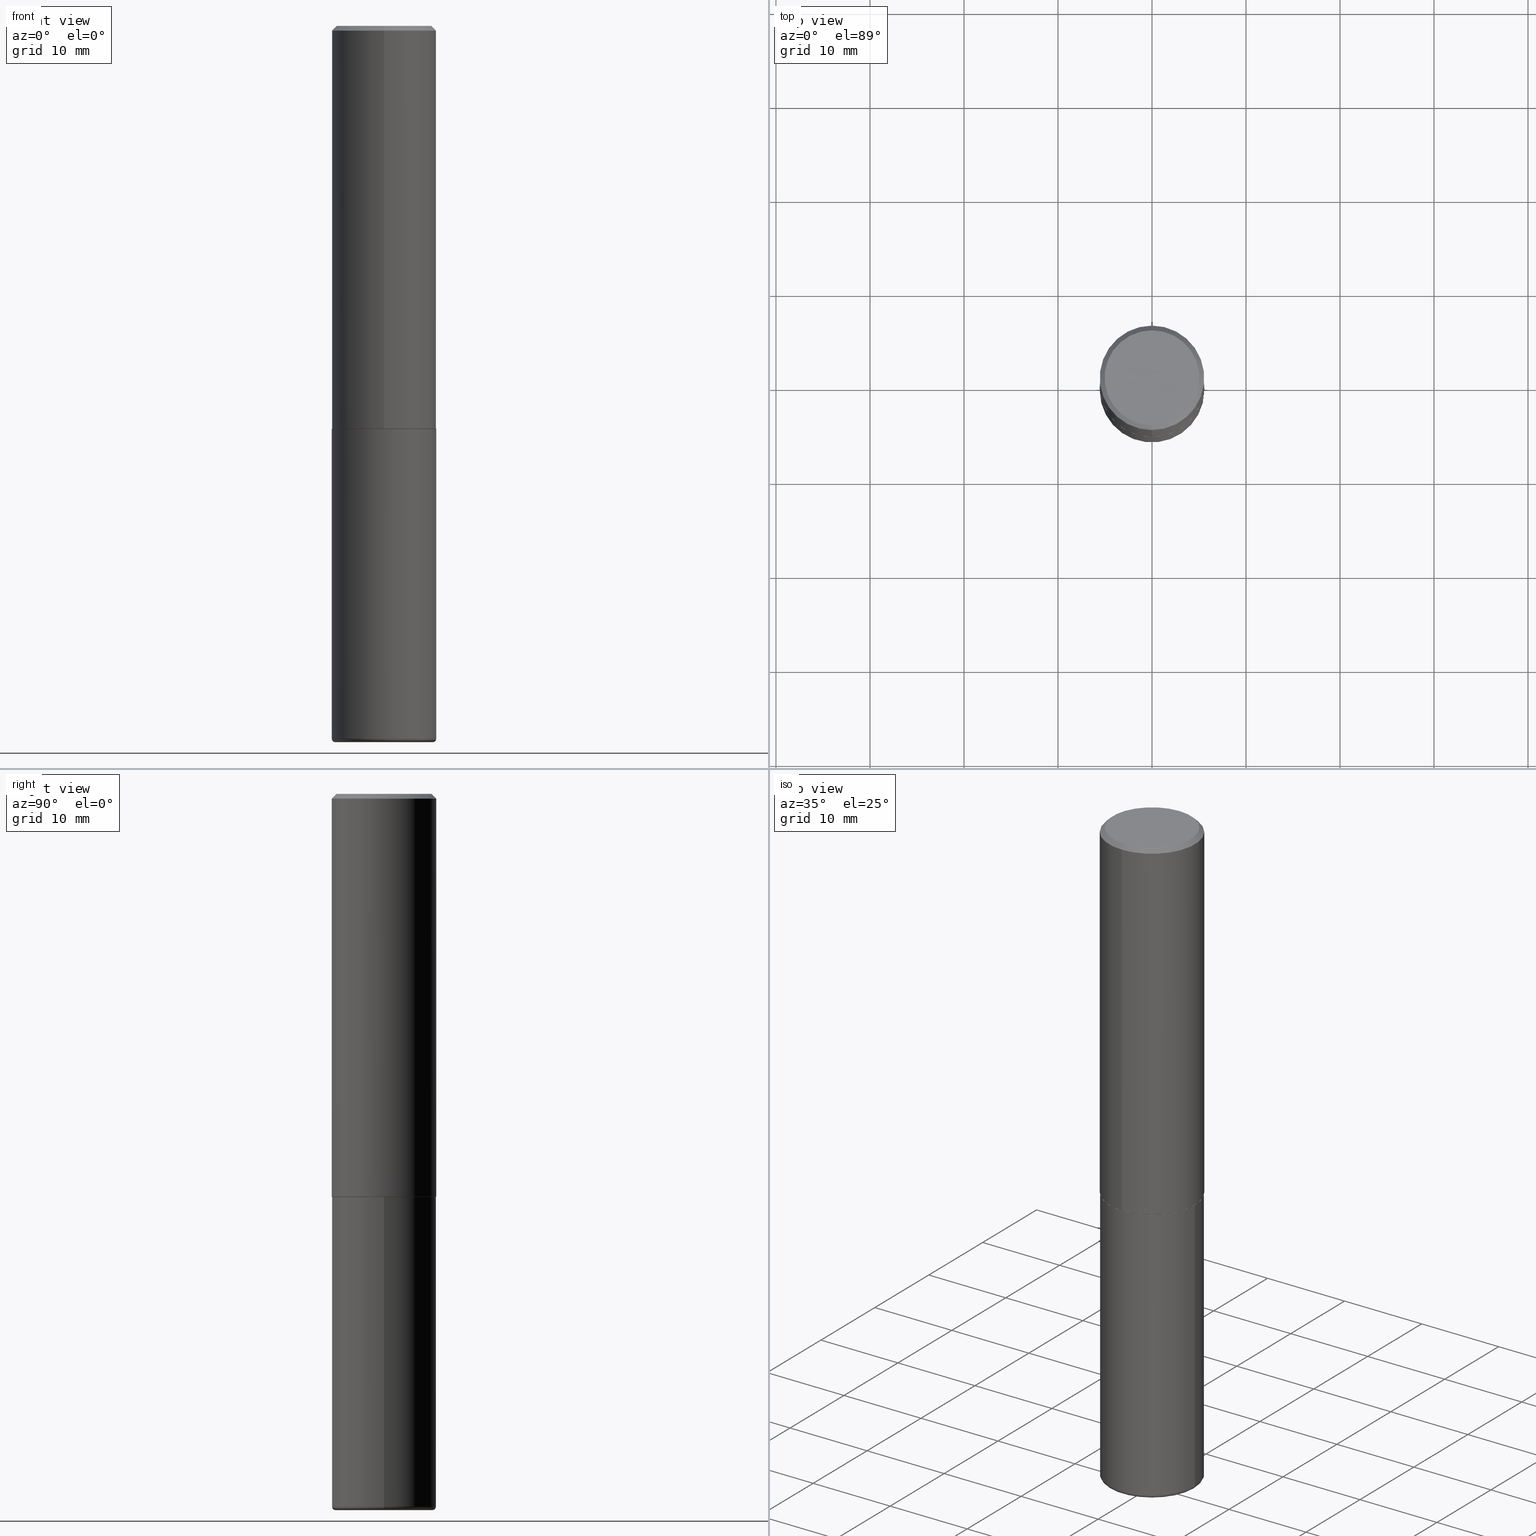
[diagram: canonical four-view strip — front | top / right | iso, engineering-drawing reading convention]
A machine part, canonical four-view strip (front | top / right | iso — engineering-drawing reading convention). The complete STEP part file that produces these views, byte-faithful:
ISO-10303-21;
HEADER;
FILE_DESCRIPTION (( 'STEP AP203' ),
    '1' );
FILE_NAME ('37500.STEP',
    '2024-03-02T02:47:31',
    ( '' ),
    ( '' ),
    'SwSTEP 2.0',
    'SolidWorks 2023',
    '' );
FILE_SCHEMA (( 'CONFIG_CONTROL_DESIGN' ));
ENDSEC;

DATA;
#1 = DIRECTION ( 'NONE',  ( -6.982962677686266711E-15, -1.000000000000000000, 3.491481338843145583E-15 ) ) ;
#2 = PLANE ( 'NONE',  #377 ) ;
#3 = CARTESIAN_POINT ( 'NONE',  ( 0.2037499999999999867, -1.189722266210801146E-14, -2.999999999999999556 ) ) ;
#4 = CIRCLE ( 'NONE', #202, 0.2187500000000000000 ) ;
#5 = LOCAL_TIME ( 21, 47, 31.00000000000000000, #380 ) ;
#6 = ORIENTED_EDGE ( 'NONE', *, *, #153, .T. ) ;
#7 = FACE_OUTER_BOUND ( 'NONE', #381, .T. ) ;
#8 = CARTESIAN_POINT ( 'NONE',  ( 4.890108441716715262E-31, -6.984150097255683598E-17, -0.02000000000000005246 ) ) ;
#9 = EDGE_CURVE ( 'NONE', #287, #157, #175, .T. ) ;
#10 = CARTESIAN_POINT ( 'NONE',  ( -1.500733937012521346E-15, -0.2187500000000000278, -0.01999999999999928571 ) ) ;
#11 = CARTESIAN_POINT ( 'NONE',  ( 1.527523085743870843E-15, 0.2187499999999998890, -0.02000000000000081574 ) ) ;
#12 = CARTESIAN_POINT ( 'NONE',  ( 4.126028997698468907E-29, -5.892876644559468745E-15, -1.687500000000000222 ) ) ;
#13 = ADVANCED_FACE ( 'NONE', ( #141 ), #2, .F. ) ;
#14 = ORIENTED_EDGE ( 'NONE', *, *, #137, .F. ) ;
#15 = PERSON_AND_ORGANIZATION ( #334, #174 ) ;
#16 = CARTESIAN_POINT ( 'NONE',  ( -1.527523085743831005E-15, -0.2187500000000061062, -1.686499999999999444 ) ) ;
#17 = ORIENTED_EDGE ( 'NONE', *, *, #230, .T. ) ;
#18 = APPLICATION_CONTEXT ( 'configuration controlled 3d designs of mechanical parts and assemblies' ) ;
#19 = PERSON_AND_ORGANIZATION_ROLE ( 'classification_officer' ) ;
#20 = LINE ( 'NONE', #208, #316 ) ;
#21 = EDGE_LOOP ( 'NONE', ( #100, #253, #127, #362 ) ) ;
#22 = AXIS2_PLACEMENT_3D ( 'NONE', #367, #173, #204 ) ;
#23 = VERTEX_POINT ( 'NONE', #64 ) ;
#24 = DATE_AND_TIME ( #386, #391 ) ;
#25 = ORIENTED_EDGE ( 'NONE', *, *, #230, .F. ) ;
#26 = CARTESIAN_POINT ( 'NONE',  ( 0.000000000000000000, 0.000000000000000000, 0.000000000000000000 ) ) ;
#27 = LOCAL_TIME ( 21, 47, 31.00000000000000000, #132 ) ;
#28 = EDGE_CURVE ( 'NONE', #216, #23, #266, .T. ) ;
#29 = CARTESIAN_POINT ( 'NONE',  ( 4.126028997698468907E-29, -5.892876644559468745E-15, -1.687500000000000222 ) ) ;
#30 = VERTEX_POINT ( 'NONE', #104 ) ;
#31 = CARTESIAN_POINT ( 'NONE',  ( 4.890108441716715262E-31, -6.984150097255683598E-17, -0.02000000000000005246 ) ) ;
#32 = CARTESIAN_POINT ( 'NONE',  ( -0.2037499999999999867, -8.947236377194901810E-15, -2.999999999999999556 ) ) ;
#33 = EDGE_CURVE ( 'NONE', #82, #346, #392, .T. ) ;
#34 = FACE_OUTER_BOUND ( 'NONE', #310, .T. ) ;
#35 = CONICAL_SURFACE ( 'NONE', #22, 0.2187499999999999445, 0.7853981633974472798 ) ;
#36 = CONICAL_SURFACE ( 'NONE', #140, 0.2177499999999999991, 0.7853981633975336552 ) ;
#37 = DIRECTION ( 'NONE',  ( -2.445054220858351343E-29, 3.492075048627833097E-15, 1.000000000000000000 ) ) ;
#38 = CC_DESIGN_PERSON_AND_ORGANIZATION_ASSIGNMENT ( #48, #110, ( #272 ) ) ;
#39 = DIRECTION ( 'NONE',  ( -2.445468806185136597E-29, 3.491481338843145583E-15, 1.000000000000000000 ) ) ;
#40 = CARTESIAN_POINT ( 'NONE',  ( 0.2187500000000000278, -1.527523085743871040E-15, 1.066663669705361025E-29 ) ) ;
#41 = EDGE_CURVE ( 'NONE', #157, #414, #361, .T. ) ;
#42 = AXIS2_PLACEMENT_3D ( 'NONE', #8, #192, #295 ) ;
#43 = AXIS2_PLACEMENT_3D ( 'NONE', #206, #347, #277 ) ;
#44 = DIRECTION ( 'NONE',  ( -2.445468806185136877E-29, 3.491481338843145188E-15, 1.000000000000000000 ) ) ;
#45 = DIRECTION ( 'NONE',  ( -4.851104656540958753E-15, -0.7071067811865492381, -0.7071067811865457964 ) ) ;
#46 = CARTESIAN_POINT ( 'NONE',  ( 1.457693458967008136E-15, 0.1987500000000000100, -7.451540659762801031E-16 ) ) ;
#47 = AXIS2_PLACEMENT_3D ( 'NONE', #169, #1, #358 ) ;
#48 = PERSON_AND_ORGANIZATION ( #334, #174 ) ;
#49 = EDGE_LOOP ( 'NONE', ( #162, #226 ) ) ;
#50 = DIRECTION ( 'NONE',  ( -2.445468806185136597E-29, 3.491481338843145583E-15, 1.000000000000000000 ) ) ;
#51 = EDGE_LOOP ( 'NONE', ( #312, #292, #221, #406 ) ) ;
#52 = PERSON_AND_ORGANIZATION ( #334, #174 ) ;
#53 = ADVANCED_FACE ( 'NONE', ( #265 ), #344, .T. ) ;
#54 = ORIENTED_EDGE ( 'NONE', *, *, #118, .F. ) ;
#55 = CIRCLE ( 'NONE', #248, 0.2187500000000000000 ) ;
#56 = AXIS2_PLACEMENT_3D ( 'NONE', #12, #150, #402 ) ;
#57 = ORIENTED_EDGE ( 'NONE', *, *, #109, .T. ) ;
#58 = DIRECTION ( 'NONE',  ( -1.000000000000000000, 7.105427357601050768E-15, 0.000000000000000000 ) ) ;
#59 = PERSON_AND_ORGANIZATION_ROLE ( 'creator' ) ;
#60 = DIRECTION ( 'NONE',  ( -2.445054220858351343E-29, 3.492075048627833097E-15, 1.000000000000000000 ) ) ;
#61 = AXIS2_PLACEMENT_3D ( 'NONE', #264, #233, #276 ) ;
#62 = CARTESIAN_POINT ( 'NONE',  ( 7.299724386462632472E-29, -1.042207179644678967E-14, -2.984999999999999876 ) ) ;
#63 = CARTESIAN_POINT ( 'NONE',  ( 4.126728610437418568E-29, -5.891874759297808836E-15, -1.687500000000000222 ) ) ;
#64 = CARTESIAN_POINT ( 'NONE',  ( 0.2187499999999999445, -1.194959488219066130E-14, -2.984999999999999876 ) ) ;
#65 = EDGE_CURVE ( 'NONE', #320, #23, #368, .T. ) ;
#66 = ORIENTED_EDGE ( 'NONE', *, *, #196, .F. ) ;
#67 = FACE_OUTER_BOUND ( 'NONE', #49, .T. ) ;
#68 = PRODUCT_DEFINITION_FORMATION_WITH_SPECIFIED_SOURCE ( 'ANY', '', #272, .NOT_KNOWN. ) ;
#69 = CARTESIAN_POINT ( 'NONE',  ( 4.126728610437418568E-29, -5.891874759297808836E-15, -1.687500000000000222 ) ) ;
#70 = DIRECTION ( 'NONE',  ( 2.438088387897960049E-29, -3.491481338843145188E-15, -1.000000000000000000 ) ) ;
#71 = CC_DESIGN_PERSON_AND_ORGANIZATION_ASSIGNMENT ( #92, #19, ( #129 ) ) ;
#72 = APPLICATION_PROTOCOL_DEFINITION ( 'international standard', 'config_control_design', 1994, #257 ) ;
#73 = DIRECTION ( 'NONE',  ( -6.982962677686265922E-15, -1.000000000000000000, 3.746534391310985612E-15 ) ) ;
#74 = AXIS2_PLACEMENT_3D ( 'NONE', #389, #97, #200 ) ;
#75 = CONICAL_SURFACE ( 'NONE', #56, 0.2177499999999999991, 0.7853981633975336552 ) ;
#76 = LINE ( 'NONE', #340, #215 ) ;
#77 = EDGE_CURVE ( 'NONE', #88, #320, #255, .T. ) ;
#78 = CARTESIAN_POINT ( 'NONE',  ( -1.432128957034806803E-15, -0.1987500000000000100, 6.429457658532835252E-16 ) ) ;
#79 = ADVANCED_BREP_SHAPE_REPRESENTATION ( '37500', ( #418, #136, #256 ), #267 ) ;
#80 = DIRECTION ( 'NONE',  ( -2.445054220858351343E-29, 3.492075048627833097E-15, 1.000000000000000000 ) ) ;
#81 = AXIS2_PLACEMENT_3D ( 'NONE', #180, #306, #403 ) ;
#82 = VERTEX_POINT ( 'NONE', #135 ) ;
#83 = APPROVAL_PERSON_ORGANIZATION ( #15, #329, #284 ) ;
#84 =( NAMED_UNIT ( * ) SI_UNIT ( $, .STERADIAN. ) SOLID_ANGLE_UNIT ( ) );
#85 = CARTESIAN_POINT ( 'NONE',  ( -0.2187500000000000000, -6.602661043397079307E-15, -1.687500000000000222 ) ) ;
#86 = ORIENTED_EDGE ( 'NONE', *, *, #77, .T. ) ;
#87 = CALENDAR_DATE ( 2024, 1, 3 ) ;
#88 = VERTEX_POINT ( 'NONE', #32 ) ;
#89 = ORIENTED_EDGE ( 'NONE', *, *, #341, .T. ) ;
#90 = VECTOR ( 'NONE', #60, 39.37007874015748143 ) ;
#91 = ORIENTED_EDGE ( 'NONE', *, *, #65, .T. ) ;
#92 = PERSON_AND_ORGANIZATION ( #334, #174 ) ;
#93 = DIRECTION ( 'NONE',  ( 7.105427357601001859E-15, 1.000000000000000000, -3.491481338843145583E-15 ) ) ;
#94 = PERSON_AND_ORGANIZATION_ROLE ( 'design_supplier' ) ;
#95 = EDGE_LOOP ( 'NONE', ( #199, #91, #17, #326 ) ) ;
#96 = AXIS2_PLACEMENT_3D ( 'NONE', #62, #195, #164 ) ;
#97 = DIRECTION ( 'NONE',  ( -2.445468806185136597E-29, 3.491481338843145583E-15, 1.000000000000000000 ) ) ;
#98 = EDGE_CURVE ( 'NONE', #414, #346, #353, .T. ) ;
#99 = AXIS2_PLACEMENT_3D ( 'NONE', #139, #393, #404 ) ;
#100 = ORIENTED_EDGE ( 'NONE', *, *, #109, .F. ) ;
#101 = DIRECTION ( 'NONE',  ( 1.000000000000000000, -6.982962677686267499E-15, 0.000000000000000000 ) ) ;
#102 = CC_DESIGN_PERSON_AND_ORGANIZATION_ASSIGNMENT ( #315, #290, ( #68 ) ) ;
#103 = DIRECTION ( 'NONE',  ( 1.000000000000000000, -6.982962677686266711E-15, 4.876176775795935232E-29 ) ) ;
#104 = CARTESIAN_POINT ( 'NONE',  ( 0.2187500000000000000, -7.419397845041678890E-15, -1.687500000000000222 ) ) ;
#105 = ADVANCED_FACE ( 'NONE', ( #394 ), #322, .T. ) ;
#106 = CARTESIAN_POINT ( 'NONE',  ( 4.126728610437418568E-29, -5.891874759297808836E-15, -1.687500000000000222 ) ) ;
#107 = CLOSED_SHELL ( 'NONE', ( #388, #375, #210, #333, #241, #399, #13, #301 ) ) ;
#108 = LOCAL_TIME ( 21, 47, 31.00000000000000000, #193 ) ;
#109 = EDGE_CURVE ( 'NONE', #123, #82, #143, .T. ) ;
#110 = PERSON_AND_ORGANIZATION_ROLE ( 'design_owner' ) ;
#111 =( CONVERSION_BASED_UNIT ( 'INCH', #279 ) LENGTH_UNIT ( ) NAMED_UNIT ( #351 ) );
#112 = CARTESIAN_POINT ( 'NONE',  ( 4.123583943477609610E-29, -5.889384569510841777E-15, -1.686500000000000110 ) ) ;
#113 = AXIS2_PLACEMENT_3D ( 'NONE', #112, #149, #73 ) ;
#114 = DIRECTION ( 'NONE',  ( 1.000000000000000000, 0.000000000000000000, 0.000000000000000000 ) ) ;
#115 = CARTESIAN_POINT ( 'NONE',  ( 4.126028997698468907E-29, -5.892876644559468745E-15, -1.687500000000000222 ) ) ;
#116 = DIRECTION ( 'NONE',  ( -2.445054220858351343E-29, 3.492075048627833097E-15, 1.000000000000000000 ) ) ;
#117 = UNCERTAINTY_MEASURE_WITH_UNIT (LENGTH_MEASURE( 1.000000000000000082E-05 ), #111, 'distance_accuracy_value', 'NONE');
#118 = EDGE_CURVE ( 'NONE', #346, #414, #151, .T. ) ;
#119 = ORIENTED_EDGE ( 'NONE', *, *, #194, .T. ) ;
#120 = CALENDAR_DATE ( 2024, 1, 3 ) ;
#121 = DIRECTION ( 'NONE',  ( -6.982962677686265922E-15, -1.000000000000000000, 3.763740060157423393E-15 ) ) ;
#122 = CIRCLE ( 'NONE', #113, 0.2187500000000002220 ) ;
#123 = VERTEX_POINT ( 'NONE', #405 ) ;
#124 = TOROIDAL_SURFACE ( 'NONE', #309, 0.2037499999999999867, 0.01499999999999987454 ) ;
#125 = DATE_TIME_ROLE ( 'creation_date' ) ;
#126 = CARTESIAN_POINT ( 'NONE',  ( 4.126028997698468907E-29, -5.892876644559468745E-15, -1.687500000000000222 ) ) ;
#127 = ORIENTED_EDGE ( 'NONE', *, *, #9, .T. ) ;
#128 = EDGE_LOOP ( 'NONE', ( #289, #119, #249, #182 ) ) ;
#129 = SECURITY_CLASSIFICATION ( '', '', #229 ) ;
#130 = EDGE_CURVE ( 'NONE', #123, #287, #308, .T. ) ;
#131 = EDGE_LOOP ( 'NONE', ( #89, #86, #293, #283 ) ) ;
#132 = COORDINATED_UNIVERSAL_TIME_OFFSET ( 5, 0, .BEHIND. ) ;
#133 = DIRECTION ( 'NONE',  ( -2.445468806185136597E-29, 3.491481338843145583E-15, 1.000000000000000000 ) ) ;
#134 = CARTESIAN_POINT ( 'NONE',  ( -1.520540123066143216E-15, -0.2177500000000058833, -1.687499999999999334 ) ) ;
#135 = CARTESIAN_POINT ( 'NONE',  ( 1.554312234475240653E-15, 0.2187499999999943101, -1.686500000000000998 ) ) ;
#136 = MANIFOLD_SOLID_BREP ( 'Body-Move/Copy2[2]', #107 ) ;
#137 = EDGE_CURVE ( 'NONE', #287, #123, #159, .T. ) ;
#138 = AXIS2_PLACEMENT_3D ( 'NONE', #198, #239, #298 ) ;
#139 = CARTESIAN_POINT ( 'NONE',  ( 7.336406418555408669E-29, -1.047444401652943478E-14, -2.999999999999999556 ) ) ;
#140 = AXIS2_PLACEMENT_3D ( 'NONE', #148, #373, #372 ) ;
#141 = FACE_OUTER_BOUND ( 'NONE', #185, .T. ) ;
#142 = CYLINDRICAL_SURFACE ( 'NONE', #242, 0.2187500000000000278 ) ;
#143 = LINE ( 'NONE', #235, #332 ) ;
#144 = DIRECTION ( 'NONE',  ( -6.982962677686265922E-15, -1.000000000000000000, 3.492075048627833097E-15 ) ) ;
#145 = DIRECTION ( 'NONE',  ( -2.445468806185136597E-29, 3.491481338843145583E-15, 1.000000000000000000 ) ) ;
#146 = VECTOR ( 'NONE', #176, 39.37007874015748143 ) ;
#147 = CC_DESIGN_APPROVAL ( #222, ( #129 ) ) ;
#148 = CARTESIAN_POINT ( 'NONE',  ( 4.126028997698468907E-29, -5.892876644559468745E-15, -1.687500000000000222 ) ) ;
#149 = DIRECTION ( 'NONE',  ( -2.445054220858351343E-29, 3.492075048627833097E-15, 1.000000000000000000 ) ) ;
#150 = DIRECTION ( 'NONE',  ( -2.445054220858351343E-29, 3.492075048627833097E-15, 1.000000000000000000 ) ) ;
#151 = CIRCLE ( 'NONE', #165, 0.2187499999999999445 ) ;
#152 = FACE_OUTER_BOUND ( 'NONE', #131, .T. ) ;
#153 = EDGE_CURVE ( 'NONE', #410, #379, #390, .T. ) ;
#154 = EDGE_LOOP ( 'NONE', ( #191, #188, #246, #411 ) ) ;
#155 = APPROVAL_STATUS ( 'not_yet_approved' ) ;
#156 = CC_DESIGN_DATE_AND_TIME_ASSIGNMENT ( #323, #262, ( #129 ) ) ;
#157 = VERTEX_POINT ( 'NONE', #16 ) ;
#158 = APPROVAL_DATE_TIME ( #220, #329 ) ;
#159 = CIRCLE ( 'NONE', #172, 0.2177499999999999991 ) ;
#160 = VERTEX_POINT ( 'NONE', #85 ) ;
#161 = ORIENTED_EDGE ( 'NONE', *, *, #130, .F. ) ;
#162 = ORIENTED_EDGE ( 'NONE', *, *, #299, .T. ) ;
#163 = EDGE_CURVE ( 'NONE', #23, #320, #400, .T. ) ;
#164 = DIRECTION ( 'NONE',  ( 1.000000000000000000, -6.982962677686267499E-15, 4.883557194083114022E-29 ) ) ;
#165 = AXIS2_PLACEMENT_3D ( 'NONE', #417, #37, #228 ) ;
#166 = DATE_AND_TIME ( #87, #5 ) ;
#167 = DIRECTION ( 'NONE',  ( -6.982962677686265922E-15, -1.000000000000000000, 3.492075048627833097E-15 ) ) ;
#168 = EDGE_CURVE ( 'NONE', #82, #157, #122, .T. ) ;
#169 = CARTESIAN_POINT ( 'NONE',  ( 0.2037499999999999867, -1.184485044202536478E-14, -2.984999999999999876 ) ) ;
#170 = DIRECTION ( 'NONE',  ( 2.445054220858351343E-29, -3.492075048627833097E-15, -1.000000000000000000 ) ) ;
#171 = CARTESIAN_POINT ( 'NONE',  ( 1.554312234475219551E-15, 0.2187500000000000833, -7.638914168873387857E-16 ) ) ;
#172 = AXIS2_PLACEMENT_3D ( 'NONE', #126, #80, #121 ) ;
#173 = DIRECTION ( 'NONE',  ( 2.445054220858351343E-29, -3.492075048627833097E-15, -1.000000000000000000 ) ) ;
#174 = ORGANIZATION ( 'UNSPECIFIED', 'UNSPECIFIED', '' ) ;
#175 = LINE ( 'NONE', #234, #178 ) ;
#176 = DIRECTION ( 'NONE',  ( -2.445468806185136877E-29, 3.491481338843145188E-15, 1.000000000000000000 ) ) ;
#177 = DIRECTION ( 'NONE',  ( 1.000000000000000000, -6.982962677686266711E-15, 4.876176775795935232E-29 ) ) ;
#178 = VECTOR ( 'NONE', #273, 39.37007874015748143 ) ;
#179 = EDGE_CURVE ( 'NONE', #379, #346, #20, .T. ) ;
#180 = CARTESIAN_POINT ( 'NONE',  ( 4.123583943477609610E-29, -5.889384569510841777E-15, -1.686500000000000110 ) ) ;
#181 = CARTESIAN_POINT ( 'NONE',  ( 0.000000000000000000, 0.000000000000000000, 0.000000000000000000 ) ) ;
#182 = ORIENTED_EDGE ( 'NONE', *, *, #179, .F. ) ;
#183 = MECHANICAL_CONTEXT ( 'NONE', #257, 'mechanical' ) ;
#184 = CARTESIAN_POINT ( 'NONE',  ( -0.2187500000000000278, 1.554312234475219354E-15, -1.076017050993260762E-29 ) ) ;
#185 = EDGE_LOOP ( 'NONE', ( #14, #161 ) ) ;
#186 = PERSON_AND_ORGANIZATION ( #334, #174 ) ;
#187 = AXIS2_PLACEMENT_3D ( 'NONE', #296, #300, #144 ) ;
#188 = ORIENTED_EDGE ( 'NONE', *, *, #33, .T. ) ;
#189 = APPROVAL_PERSON_ORGANIZATION ( #412, #222, #359 ) ;
#190 = CALENDAR_DATE ( 2024, 1, 3 ) ;
#191 = ORIENTED_EDGE ( 'NONE', *, *, #196, .T. ) ;
#192 = DIRECTION ( 'NONE',  ( -2.445054220858351343E-29, 3.492075048627833097E-15, 1.000000000000000000 ) ) ;
#193 = COORDINATED_UNIVERSAL_TIME_OFFSET ( 5, 0, .BEHIND. ) ;
#194 = EDGE_CURVE ( 'NONE', #410, #414, #76, .T. ) ;
#195 = DIRECTION ( 'NONE',  ( -2.445468806185136597E-29, 3.491481338843145583E-15, 1.000000000000000000 ) ) ;
#196 = EDGE_CURVE ( 'NONE', #157, #82, #223, .T. ) ;
#197 = CARTESIAN_POINT ( 'NONE',  ( 7.299724386462632472E-29, -1.042207179644678967E-14, -2.984999999999999876 ) ) ;
#198 = CARTESIAN_POINT ( 'NONE',  ( 1.295399441782991178E-28, -2.429738268315648878E-15, -2.999999999999999556 ) ) ;
#199 = ORIENTED_EDGE ( 'NONE', *, *, #413, .F. ) ;
#200 = DIRECTION ( 'NONE',  ( 1.000000000000000000, -6.982962677686263555E-15, 0.000000000000000000 ) ) ;
#201 = CARTESIAN_POINT ( 'NONE',  ( -1.527523085743871237E-15, -0.2187500000000000833, 7.638914168873387857E-16 ) ) ;
#202 = AXIS2_PLACEMENT_3D ( 'NONE', #106, #39, #101 ) ;
#203 = VECTOR ( 'NONE', #44, 39.37007874015748143 ) ;
#204 = DIRECTION ( 'NONE',  ( 6.982962677686265922E-15, 1.000000000000000000, -3.492862791899308860E-15 ) ) ;
#205 = CARTESIAN_POINT ( 'NONE',  ( -0.2187499999999999445, -8.867759561971568934E-15, -2.984999999999999876 ) ) ;
#206 = CARTESIAN_POINT ( 'NONE',  ( 0.000000000000000000, 0.000000000000000000, 0.000000000000000000 ) ) ;
#207 = AXIS2_PLACEMENT_3D ( 'NONE', #218, #349, #212 ) ;
#208 = CARTESIAN_POINT ( 'NONE',  ( 1.527523085743870843E-15, 0.2187499999999998890, -0.02000000000000081574 ) ) ;
#209 = LOCAL_TIME ( 21, 47, 31.00000000000000000, #240 ) ;
#210 = ADVANCED_FACE ( 'NONE', ( #360 ), #35, .T. ) ;
#211 = LINE ( 'NONE', #184, #203 ) ;
#212 = DIRECTION ( 'NONE',  ( 1.000000000000000000, -6.982962677686271444E-15, 0.000000000000000000 ) ) ;
#213 = PRODUCT_DEFINITION ( 'UNKNOWN', '', #68, #260 ) ;
#214 = CARTESIAN_POINT ( 'NONE',  ( 7.299724386462632472E-29, -1.042207179644678967E-14, -2.984999999999999876 ) ) ;
#215 = VECTOR ( 'NONE', #45, 39.37007874015748143 ) ;
#216 = VERTEX_POINT ( 'NONE', #3 ) ;
#217 = CARTESIAN_POINT ( 'NONE',  ( 1.249524178112448832E-45, -1.784595273110905928E-31, -5.110415006149825816E-17 ) ) ;
#218 = CARTESIAN_POINT ( 'NONE',  ( 7.299724386462632472E-29, -1.042207179644678967E-14, -2.984999999999999876 ) ) ;
#219 = ORIENTED_EDGE ( 'NONE', *, *, #9, .F. ) ;
#220 = DATE_AND_TIME ( #120, #209 ) ;
#221 = ORIENTED_EDGE ( 'NONE', *, *, #179, .T. ) ;
#222 = APPROVAL ( #286, 'UNSPECIFIED' ) ;
#223 = CIRCLE ( 'NONE', #81, 0.2187500000000002220 ) ;
#224 = ORIENTED_EDGE ( 'NONE', *, *, #227, .T. ) ;
#225 = CIRCLE ( 'NONE', #232, 0.1987500000000000100 ) ;
#226 = ORIENTED_EDGE ( 'NONE', *, *, #271, .T. ) ;
#227 = EDGE_CURVE ( 'NONE', #88, #216, #382, .T. ) ;
#228 = DIRECTION ( 'NONE',  ( -6.982962677686265922E-15, -1.000000000000000000, 3.492862791899308860E-15 ) ) ;
#229 = SECURITY_CLASSIFICATION_LEVEL ( 'unclassified' ) ;
#230 = EDGE_CURVE ( 'NONE', #23, #30, #274, .T. ) ;
#231 = ORIENTED_EDGE ( 'NONE', *, *, #33, .F. ) ;
#232 = AXIS2_PLACEMENT_3D ( 'NONE', #217, #116, #338 ) ;
#233 = DIRECTION ( 'NONE',  ( 2.445054220858351343E-29, -3.492075048627833097E-15, -1.000000000000000000 ) ) ;
#234 = CARTESIAN_POINT ( 'NONE',  ( -1.520540123066143216E-15, -0.2177500000000058833, -1.687499999999999334 ) ) ;
#235 = CARTESIAN_POINT ( 'NONE',  ( 1.547206807117658972E-15, 0.2177499999999940872, -1.687500000000001110 ) ) ;
#236 = FACE_OUTER_BOUND ( 'NONE', #297, .T. ) ;
#237 = ADVANCED_FACE ( 'NONE', ( #34 ), #304, .T. ) ;
#238 = DIRECTION ( 'NONE',  ( 1.000000000000000000, -6.982962677686271444E-15, 0.000000000000000000 ) ) ;
#239 = DIRECTION ( 'NONE',  ( 2.438088387897960049E-29, -3.491481338843145188E-15, -1.000000000000000000 ) ) ;
#240 = COORDINATED_UNIVERSAL_TIME_OFFSET ( 5, 0, .BEHIND. ) ;
#241 = ADVANCED_FACE ( 'NONE', ( #268 ), #397, .T. ) ;
#242 = AXIS2_PLACEMENT_3D ( 'NONE', #366, #270, #177 ) ;
#243 = DIRECTION ( 'NONE',  ( 4.937700262164542520E-15, 0.7071067811865443531, -0.7071067811865506814 ) ) ;
#244 = CC_DESIGN_PERSON_AND_ORGANIZATION_ASSIGNMENT ( #415, #59, ( #213 ) ) ;
#245 = CYLINDRICAL_SURFACE ( 'NONE', #43, 0.2187500000000000833 ) ;
#246 = ORIENTED_EDGE ( 'NONE', *, *, #98, .F. ) ;
#247 =( NAMED_UNIT ( * ) PLANE_ANGLE_UNIT ( ) SI_UNIT ( $, .RADIAN. ) );
#248 = AXIS2_PLACEMENT_3D ( 'NONE', #69, #145, #395 ) ;
#249 = ORIENTED_EDGE ( 'NONE', *, *, #98, .T. ) ;
#250 = CALENDAR_DATE ( 2024, 1, 3 ) ;
#251 = ORIENTED_EDGE ( 'NONE', *, *, #137, .T. ) ;
#252 = APPROVAL ( #254, 'UNSPECIFIED' ) ;
#253 = ORIENTED_EDGE ( 'NONE', *, *, #130, .T. ) ;
#254 = APPROVAL_STATUS ( 'not_yet_approved' ) ;
#255 = CIRCLE ( 'NONE', #336, 0.01499999999999987454 ) ;
#256 = AXIS2_PLACEMENT_3D ( 'NONE', #181, #307, #114 ) ;
#257 = APPLICATION_CONTEXT ( 'configuration controlled 3d designs of mechanical parts and assemblies' ) ;
#258 = ORIENTED_EDGE ( 'NONE', *, *, #413, .T. ) ;
#259 = COORDINATED_UNIVERSAL_TIME_OFFSET ( 5, 0, .BEHIND. ) ;
#260 = DESIGN_CONTEXT ( 'detailed design', #18, 'design' ) ;
#261 = DIRECTION ( 'NONE',  ( -2.445054220858351343E-29, 3.492075048627833097E-15, 1.000000000000000000 ) ) ;
#262 = DATE_TIME_ROLE ( 'classification_date' ) ;
#263 = EDGE_LOOP ( 'NONE', ( #231, #327, #318, #54 ) ) ;
#264 = CARTESIAN_POINT ( 'NONE',  ( 1.387863832190145233E-15, 0.1987500000000000100, -7.196019909455309833E-16 ) ) ;
#265 = FACE_OUTER_BOUND ( 'NONE', #384, .T. ) ;
#266 = CIRCLE ( 'NONE', #47, 0.01499999999999987454 ) ;
#267 =( GEOMETRIC_REPRESENTATION_CONTEXT ( 3 ) GLOBAL_UNCERTAINTY_ASSIGNED_CONTEXT ( ( #117 ) ) GLOBAL_UNIT_ASSIGNED_CONTEXT ( ( #111, #247, #84 ) ) REPRESENTATION_CONTEXT ( 'NONE', 'WORKASPACE' ) );
#268 = FACE_OUTER_BOUND ( 'NONE', #263, .T. ) ;
#269 = ORIENTED_EDGE ( 'NONE', *, *, #341, .F. ) ;
#270 = DIRECTION ( 'NONE',  ( -2.445468806185136597E-29, 3.491481338843145583E-15, 1.000000000000000000 ) ) ;
#271 = EDGE_CURVE ( 'NONE', #160, #30, #4, .T. ) ;
#272 = PRODUCT ( '37500', '37500', '', ( #183 ) ) ;
#273 = DIRECTION ( 'NONE',  ( -4.937700262164969294E-15, -0.7071067811866054154, 0.7071067811864896191 ) ) ;
#274 = LINE ( 'NONE', #40, #146 ) ;
#275 = AXIS2_PLACEMENT_3D ( 'NONE', #343, #378, #345 ) ;
#276 = DIRECTION ( 'NONE',  ( 6.982962677686265922E-15, 1.000000000000000000, -3.492075048627833097E-15 ) ) ;
#277 = DIRECTION ( 'NONE',  ( -6.982962677686265922E-15, -1.000000000000000000, 3.492075048627833097E-15 ) ) ;
#278 =( LENGTH_UNIT ( ) NAMED_UNIT ( * ) SI_UNIT ( $, .METRE. ) );
#279 = LENGTH_MEASURE_WITH_UNIT ( LENGTH_MEASURE( 0.02539999999999999897 ), #278 );
#280 = CC_DESIGN_SECURITY_CLASSIFICATION ( #129, ( #68 ) ) ;
#281 = DIRECTION ( 'NONE',  ( 1.000000000000000000, -6.982962677686267499E-15, 4.883557194083114022E-29 ) ) ;
#282 = CC_DESIGN_DATE_AND_TIME_ASSIGNMENT ( #24, #125, ( #213 ) ) ;
#283 = ORIENTED_EDGE ( 'NONE', *, *, #28, .F. ) ;
#284 = APPROVAL_ROLE ( '' ) ;
#285 = ORIENTED_EDGE ( 'NONE', *, *, #227, .F. ) ;
#286 = APPROVAL_STATUS ( 'not_yet_approved' ) ;
#287 = VERTEX_POINT ( 'NONE', #134 ) ;
#288 = ADVANCED_FACE ( 'NONE', ( #7 ), #142, .T. ) ;
#289 = ORIENTED_EDGE ( 'NONE', *, *, #153, .F. ) ;
#290 = PERSON_AND_ORGANIZATION_ROLE ( 'creator' ) ;
#291 = AXIS2_PLACEMENT_3D ( 'NONE', #197, #396, #238 ) ;
#292 = ORIENTED_EDGE ( 'NONE', *, *, #371, .F. ) ;
#293 = ORIENTED_EDGE ( 'NONE', *, *, #163, .F. ) ;
#294 = DIRECTION ( 'NONE',  ( 6.982962677686265922E-15, 1.000000000000000000, -3.492862791899308860E-15 ) ) ;
#295 = DIRECTION ( 'NONE',  ( -6.982962677686265922E-15, -1.000000000000000000, 3.492862791899308860E-15 ) ) ;
#296 = CARTESIAN_POINT ( 'NONE',  ( 0.000000000000000000, 0.000000000000000000, 0.000000000000000000 ) ) ;
#297 = EDGE_LOOP ( 'NONE', ( #356, #6 ) ) ;
#298 = DIRECTION ( 'NONE',  ( -1.000000000000000000, 6.982962677686265922E-15, -4.876176775795935793E-29 ) ) ;
#299 = EDGE_CURVE ( 'NONE', #30, #160, #55, .T. ) ;
#300 = DIRECTION ( 'NONE',  ( -2.445054220858351343E-29, 3.492075048627833097E-15, 1.000000000000000000 ) ) ;
#301 = ADVANCED_FACE ( 'NONE', ( #236 ), #364, .F. ) ;
#302 = AXIS2_PLACEMENT_3D ( 'NONE', #63, #70, #328 ) ;
#303 = APPROVAL_PERSON_ORGANIZATION ( #52, #252, #407 ) ;
#304 = PLANE ( 'NONE',  #138 ) ;
#305 = FACE_OUTER_BOUND ( 'NONE', #21, .T. ) ;
#306 = DIRECTION ( 'NONE',  ( -2.445054220858351343E-29, 3.492075048627833097E-15, 1.000000000000000000 ) ) ;
#307 = DIRECTION ( 'NONE',  ( 0.000000000000000000, 0.000000000000000000, 1.000000000000000000 ) ) ;
#308 = CIRCLE ( 'NONE', #416, 0.2177499999999999991 ) ;
#309 = AXIS2_PLACEMENT_3D ( 'NONE', #214, #50, #281 ) ;
#310 = EDGE_LOOP ( 'NONE', ( #269, #285 ) ) ;
#311 = APPLICATION_PROTOCOL_DEFINITION ( 'international standard', 'config_control_design', 1994, #18 ) ;
#312 = ORIENTED_EDGE ( 'NONE', *, *, #194, .F. ) ;
#313 = ADVANCED_FACE ( 'NONE', ( #67 ), #398, .F. ) ;
#314 = ORIENTED_EDGE ( 'NONE', *, *, #28, .T. ) ;
#315 = PERSON_AND_ORGANIZATION ( #334, #174 ) ;
#316 = VECTOR ( 'NONE', #243, 39.37007874015748143 ) ;
#317 = AXIS2_PLACEMENT_3D ( 'NONE', #31, #170, #294 ) ;
#318 = ORIENTED_EDGE ( 'NONE', *, *, #41, .T. ) ;
#319 = APPROVAL_DATE_TIME ( #166, #222 ) ;
#320 = VERTEX_POINT ( 'NONE', #205 ) ;
#321 = DATE_AND_TIME ( #190, #108 ) ;
#322 = CYLINDRICAL_SURFACE ( 'NONE', #365, 0.2187500000000000278 ) ;
#323 = DATE_AND_TIME ( #250, #27 ) ;
#324 = PRODUCT_DEFINITION_SHAPE ( 'NONE', 'NONE',  #213 ) ;
#325 = CONICAL_SURFACE ( 'NONE', #317, 0.2187499999999999445, 0.7853981633974472798 ) ;
#326 = ORIENTED_EDGE ( 'NONE', *, *, #271, .F. ) ;
#327 = ORIENTED_EDGE ( 'NONE', *, *, #168, .T. ) ;
#328 = DIRECTION ( 'NONE',  ( -1.000000000000000000, 6.982962677686265922E-15, -4.876176775795935793E-29 ) ) ;
#329 = APPROVAL ( #155, 'UNSPECIFIED' ) ;
#330 = CARTESIAN_POINT ( 'NONE',  ( -0.2037499999999999867, -8.974340972335584846E-15, -2.984999999999999876 ) ) ;
#331 = DIRECTION ( 'NONE',  ( 5.024295867788490741E-15, 0.7071067811866103003, 0.7071067811864847341 ) ) ;
#332 = VECTOR ( 'NONE', #331, 39.37007874015748143 ) ;
#333 = ADVANCED_FACE ( 'NONE', ( #335 ), #325, .T. ) ;
#334 = PERSON ( 'UNSPECIFIED', 'UNSPECIFIED', 'UNSPECIFIED', ('UNSPECIFIED'), ('UNSPECIFIED'), ('UNSPECIFIED') ) ;
#335 = FACE_OUTER_BOUND ( 'NONE', #51, .T. ) ;
#336 = AXIS2_PLACEMENT_3D ( 'NONE', #330, #93, #58 ) ;
#337 = CC_DESIGN_APPROVAL ( #329, ( #213 ) ) ;
#338 = DIRECTION ( 'NONE',  ( -6.982962677686265133E-15, -1.000000000000000000, 3.492075048627833097E-15 ) ) ;
#339 = DIRECTION ( 'NONE',  ( -2.445054220858351343E-29, 3.492075048627833097E-15, 1.000000000000000000 ) ) ;
#340 = CARTESIAN_POINT ( 'NONE',  ( -1.500733937012521346E-15, -0.2187500000000000278, -0.01999999999999928571 ) ) ;
#341 = EDGE_CURVE ( 'NONE', #216, #88, #401, .T. ) ;
#342 = FACE_OUTER_BOUND ( 'NONE', #363, .T. ) ;
#343 = CARTESIAN_POINT ( 'NONE',  ( 1.249524178112448832E-45, -1.784595273110905928E-31, -5.110415006149825816E-17 ) ) ;
#344 = TOROIDAL_SURFACE ( 'NONE', #96, 0.2037499999999999867, 0.01499999999999987454 ) ;
#345 = DIRECTION ( 'NONE',  ( -6.982962677686265133E-15, -1.000000000000000000, 3.492075048627833097E-15 ) ) ;
#346 = VERTEX_POINT ( 'NONE', #11 ) ;
#347 = DIRECTION ( 'NONE',  ( -2.445054220858351343E-29, 3.492075048627833097E-15, 1.000000000000000000 ) ) ;
#348 = ADVANCED_FACE ( 'NONE', ( #152 ), #124, .T. ) ;
#349 = DIRECTION ( 'NONE',  ( -2.445468806185136597E-29, 3.491481338843145583E-15, 1.000000000000000000 ) ) ;
#350 = SHAPE_DEFINITION_REPRESENTATION ( #324, #79 ) ;
#351 = DIMENSIONAL_EXPONENTS ( 1.000000000000000000, 0.000000000000000000, 0.000000000000000000, 0.000000000000000000, 0.000000000000000000, 0.000000000000000000, 0.000000000000000000 ) ;
#352 = ORIENTED_EDGE ( 'NONE', *, *, #299, .F. ) ;
#353 = CIRCLE ( 'NONE', #42, 0.2187499999999999445 ) ;
#354 = ORIENTED_EDGE ( 'NONE', *, *, #65, .F. ) ;
#355 = APPROVAL_DATE_TIME ( #321, #252 ) ;
#356 = ORIENTED_EDGE ( 'NONE', *, *, #371, .T. ) ;
#357 = CC_DESIGN_PERSON_AND_ORGANIZATION_ASSIGNMENT ( #186, #94, ( #68 ) ) ;
#358 = DIRECTION ( 'NONE',  ( 1.000000000000000000, -6.982962677686326664E-15, 0.000000000000000000 ) ) ;
#359 = APPROVAL_ROLE ( '' ) ;
#360 = FACE_OUTER_BOUND ( 'NONE', #128, .T. ) ;
#361 = LINE ( 'NONE', #201, #408 ) ;
#362 = ORIENTED_EDGE ( 'NONE', *, *, #168, .F. ) ;
#363 = EDGE_LOOP ( 'NONE', ( #251, #57, #66, #219 ) ) ;
#364 = PLANE ( 'NONE',  #61 ) ;
#365 = AXIS2_PLACEMENT_3D ( 'NONE', #26, #133, #103 ) ;
#366 = CARTESIAN_POINT ( 'NONE',  ( 0.000000000000000000, 0.000000000000000000, 0.000000000000000000 ) ) ;
#367 = CARTESIAN_POINT ( 'NONE',  ( 4.890108441716715262E-31, -6.984150097255683598E-17, -0.02000000000000005246 ) ) ;
#368 = CIRCLE ( 'NONE', #291, 0.2187500000000000278 ) ;
#369 = CC_DESIGN_APPROVAL ( #252, ( #68 ) ) ;
#370 = FACE_OUTER_BOUND ( 'NONE', #154, .T. ) ;
#371 = EDGE_CURVE ( 'NONE', #379, #410, #225, .T. ) ;
#372 = DIRECTION ( 'NONE',  ( -6.982962677686265922E-15, -1.000000000000000000, 3.763740060157423393E-15 ) ) ;
#373 = DIRECTION ( 'NONE',  ( -2.445054220858351343E-29, 3.492075048627833097E-15, 1.000000000000000000 ) ) ;
#374 = ORIENTED_EDGE ( 'NONE', *, *, #163, .T. ) ;
#375 = ADVANCED_FACE ( 'NONE', ( #370 ), #245, .T. ) ;
#376 = CLOSED_SHELL ( 'NONE', ( #288, #348, #313, #105, #53, #237 ) ) ;
#377 = AXIS2_PLACEMENT_3D ( 'NONE', #29, #261, #167 ) ;
#378 = DIRECTION ( 'NONE',  ( -2.445054220858351343E-29, 3.492075048627833097E-15, 1.000000000000000000 ) ) ;
#379 = VERTEX_POINT ( 'NONE', #46 ) ;
#380 = COORDINATED_UNIVERSAL_TIME_OFFSET ( 5, 0, .BEHIND. ) ;
#381 = EDGE_LOOP ( 'NONE', ( #374, #258, #352, #25 ) ) ;
#382 = CIRCLE ( 'NONE', #74, 0.2037499999999999867 ) ;
#383 = PRODUCT_RELATED_PRODUCT_CATEGORY ( 'detail', '', ( #272 ) ) ;
#384 = EDGE_LOOP ( 'NONE', ( #387, #224, #314, #354 ) ) ;
#385 = DIRECTION ( 'NONE',  ( -2.445054220858351343E-29, 3.492075048627833097E-15, 1.000000000000000000 ) ) ;
#386 = CALENDAR_DATE ( 2024, 1, 3 ) ;
#387 = ORIENTED_EDGE ( 'NONE', *, *, #77, .F. ) ;
#388 = ADVANCED_FACE ( 'NONE', ( #342 ), #75, .T. ) ;
#389 = CARTESIAN_POINT ( 'NONE',  ( 7.336406418555408669E-29, -1.047444401652943478E-14, -2.999999999999999556 ) ) ;
#390 = CIRCLE ( 'NONE', #275, 0.1987500000000000100 ) ;
#391 = LOCAL_TIME ( 21, 47, 31.00000000000000000, #259 ) ;
#392 = LINE ( 'NONE', #171, #90 ) ;
#393 = DIRECTION ( 'NONE',  ( -2.445468806185136597E-29, 3.491481338843145583E-15, 1.000000000000000000 ) ) ;
#394 = FACE_OUTER_BOUND ( 'NONE', #95, .T. ) ;
#395 = DIRECTION ( 'NONE',  ( 1.000000000000000000, -6.982962677686267499E-15, 0.000000000000000000 ) ) ;
#396 = DIRECTION ( 'NONE',  ( -2.445468806185136597E-29, 3.491481338843145583E-15, 1.000000000000000000 ) ) ;
#397 = CYLINDRICAL_SURFACE ( 'NONE', #187, 0.2187500000000000833 ) ;
#398 = PLANE ( 'NONE',  #302 ) ;
#399 = ADVANCED_FACE ( 'NONE', ( #305 ), #36, .T. ) ;
#400 = CIRCLE ( 'NONE', #207, 0.2187500000000000278 ) ;
#401 = CIRCLE ( 'NONE', #99, 0.2037499999999999867 ) ;
#402 = DIRECTION ( 'NONE',  ( -6.982962677686265922E-15, -1.000000000000000000, 3.763740060157423393E-15 ) ) ;
#403 = DIRECTION ( 'NONE',  ( -6.982962677686265922E-15, -1.000000000000000000, 3.746534391310985612E-15 ) ) ;
#404 = DIRECTION ( 'NONE',  ( 1.000000000000000000, -6.982962677686263555E-15, 0.000000000000000000 ) ) ;
#405 = CARTESIAN_POINT ( 'NONE',  ( 1.550759520796460265E-15, 0.2177499999999940872, -1.687500000000001110 ) ) ;
#406 = ORIENTED_EDGE ( 'NONE', *, *, #118, .T. ) ;
#407 = APPROVAL_ROLE ( '' ) ;
#408 = VECTOR ( 'NONE', #385, 39.37007874015748143 ) ;
#409 = DIRECTION ( 'NONE',  ( -6.982962677686265922E-15, -1.000000000000000000, 3.763740060157423393E-15 ) ) ;
#410 = VERTEX_POINT ( 'NONE', #78 ) ;
#411 = ORIENTED_EDGE ( 'NONE', *, *, #41, .F. ) ;
#412 = PERSON_AND_ORGANIZATION ( #334, #174 ) ;
#413 = EDGE_CURVE ( 'NONE', #320, #160, #211, .T. ) ;
#414 = VERTEX_POINT ( 'NONE', #10 ) ;
#415 = PERSON_AND_ORGANIZATION ( #334, #174 ) ;
#416 = AXIS2_PLACEMENT_3D ( 'NONE', #115, #339, #409 ) ;
#417 = CARTESIAN_POINT ( 'NONE',  ( 4.890108441716715262E-31, -6.984150097255683598E-17, -0.02000000000000005246 ) ) ;
#418 = MANIFOLD_SOLID_BREP ( 'Body-Move/Copy2[1]', #376 ) ;
ENDSEC;
END-ISO-10303-21;
